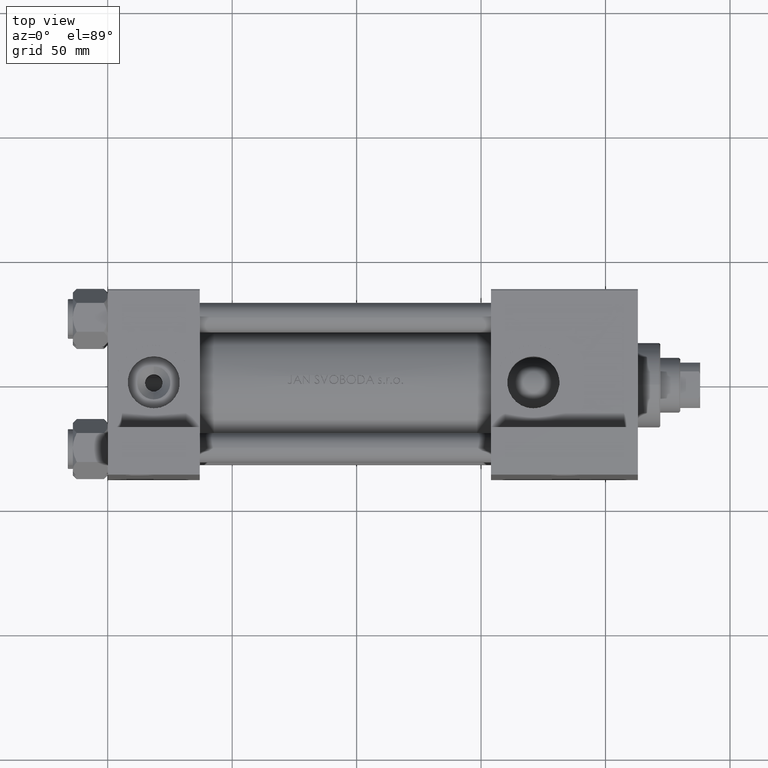
[diagram: clean part render]
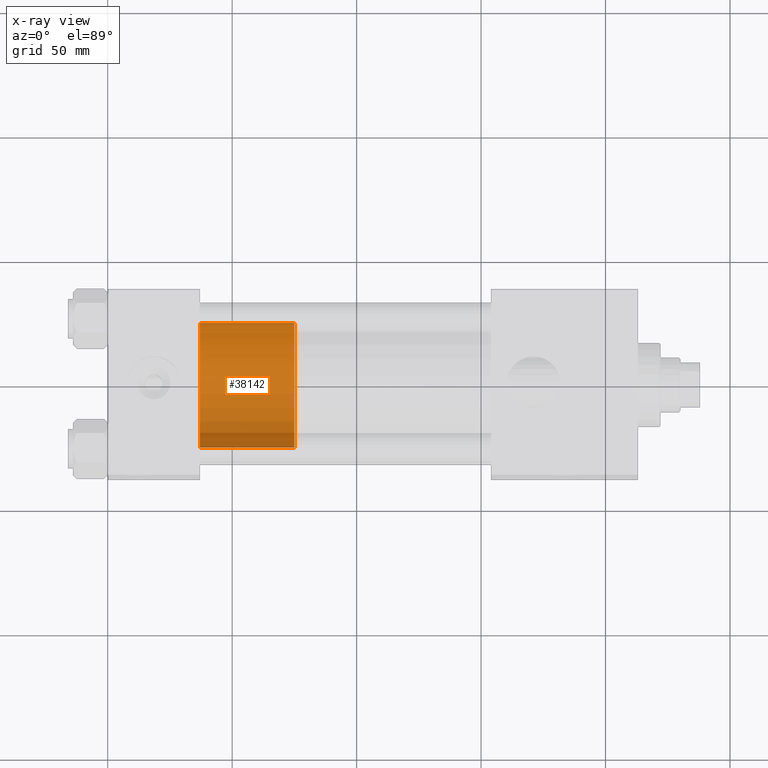
[diagram: x-ray — body ghosted, one internal face saturated and labeled with its STEP entity id]
A machine part, top view, then the same camera in x-ray: the body is ghosted and one INTERNAL B-rep face — a face not visible from any outside direction — is saturated and labeled: STEP entity #38142.
In plain terms, the highlighted cylindrical surface (partial cylindrical patch) has radius 25 mm, axis along (-1, 0, 0).
Its self-contained STEP definition (entity closure, byte-faithful):
#776 = AXIS2_PLACEMENT_3D ( 'NONE', #2625, #32539, #47719 ) ;
#2625 = CARTESIAN_POINT ( 'NONE',  ( 0.000000000000000000, 0.000000000000000000, 0.000000000000000000 ) ) ;
#4319 = CARTESIAN_POINT ( 'NONE',  ( 0.000000000000000000, 0.000000000000000000, 38.00000000000000000 ) ) ;
#4837 = CYLINDRICAL_SURFACE ( 'NONE', #24049, 25.00000000000000000 ) ;
#5311 = VECTOR ( 'NONE', #14538, 1000.000000000000000 ) ;
#6355 = ORIENTED_EDGE ( 'NONE', *, *, #37306, .F. ) ;
#6813 = LINE ( 'NONE', #9817, #5311 ) ;
#7561 = DIRECTION ( 'NONE',  ( 1.000000000000000000, 0.000000000000000000, 0.000000000000000000 ) ) ;
#9817 = CARTESIAN_POINT ( 'NONE',  ( 25.00000000000000000, 3.061616997868383043E-15, 38.00000000000000000 ) ) ;
#13527 = DIRECTION ( 'NONE',  ( -0.000000000000000000, -0.000000000000000000, -1.000000000000000000 ) ) ;
#14495 = VERTEX_POINT ( 'NONE', #34780 ) ;
#14538 = DIRECTION ( 'NONE',  ( -0.000000000000000000, -0.000000000000000000, -1.000000000000000000 ) ) ;
#17739 = EDGE_LOOP ( 'NONE', ( #6355, #24285, #27434, #37623 ) ) ;
#18442 = EDGE_CURVE ( 'NONE', #34011, #33877, #6813, .T. ) ;
#22746 = CARTESIAN_POINT ( 'NONE',  ( 25.00000000000000000, 3.061616997868383043E-15, 38.00000000000000000 ) ) ;
#24049 = AXIS2_PLACEMENT_3D ( 'NONE', #36219, #13527, #47906 ) ;
#24285 = ORIENTED_EDGE ( 'NONE', *, *, #18442, .T. ) ;
#24755 = FACE_OUTER_BOUND ( 'NONE', #17739, .T. ) ;
#27240 = DIRECTION ( 'NONE',  ( 0.000000000000000000, 0.000000000000000000, 1.000000000000000000 ) ) ;
#27434 = ORIENTED_EDGE ( 'NONE', *, *, #46345, .T. ) ;
#28636 = EDGE_CURVE ( 'NONE', #39291, #14495, #41847, .T. ) ;
#32539 = DIRECTION ( 'NONE',  ( 0.000000000000000000, 0.000000000000000000, 1.000000000000000000 ) ) ;
#33877 = VERTEX_POINT ( 'NONE', #41204 ) ;
#33888 = DIRECTION ( 'NONE',  ( -0.000000000000000000, -0.000000000000000000, -1.000000000000000000 ) ) ;
#34011 = VERTEX_POINT ( 'NONE', #22746 ) ;
#34383 = AXIS2_PLACEMENT_3D ( 'NONE', #4319, #27240, #7561 ) ;
#34780 = CARTESIAN_POINT ( 'NONE',  ( -25.00000000000000000, 0.000000000000000000, 0.000000000000000000 ) ) ;
#36173 = CARTESIAN_POINT ( 'NONE',  ( -25.00000000000000000, 0.000000000000000000, 38.00000000000000000 ) ) ;
#36219 = CARTESIAN_POINT ( 'NONE',  ( 0.000000000000000000, 0.000000000000000000, 38.00000000000000000 ) ) ;
#37306 = EDGE_CURVE ( 'NONE', #34011, #39291, #42338, .T. ) ;
#37401 = VECTOR ( 'NONE', #33888, 1000.000000000000000 ) ;
#37623 = ORIENTED_EDGE ( 'NONE', *, *, #28636, .F. ) ;
#38142 = ADVANCED_FACE ( 'NONE', ( #24755 ), #4837, .T. ) ;
#39291 = VERTEX_POINT ( 'NONE', #36173 ) ;
#40551 = CIRCLE ( 'NONE', #776, 25.00000000000000000 ) ;
#41204 = CARTESIAN_POINT ( 'NONE',  ( 25.00000000000000000, 3.061616997868383043E-15, 0.000000000000000000 ) ) ;
#41847 = LINE ( 'NONE', #49066, #37401 ) ;
#42338 = CIRCLE ( 'NONE', #34383, 25.00000000000000000 ) ;
#46345 = EDGE_CURVE ( 'NONE', #33877, #14495, #40551, .T. ) ;
#47719 = DIRECTION ( 'NONE',  ( 1.000000000000000000, 0.000000000000000000, 0.000000000000000000 ) ) ;
#47906 = DIRECTION ( 'NONE',  ( -1.000000000000000000, 0.000000000000000000, 0.000000000000000000 ) ) ;
#49066 = CARTESIAN_POINT ( 'NONE',  ( -25.00000000000000000, 0.000000000000000000, 38.00000000000000000 ) ) ;